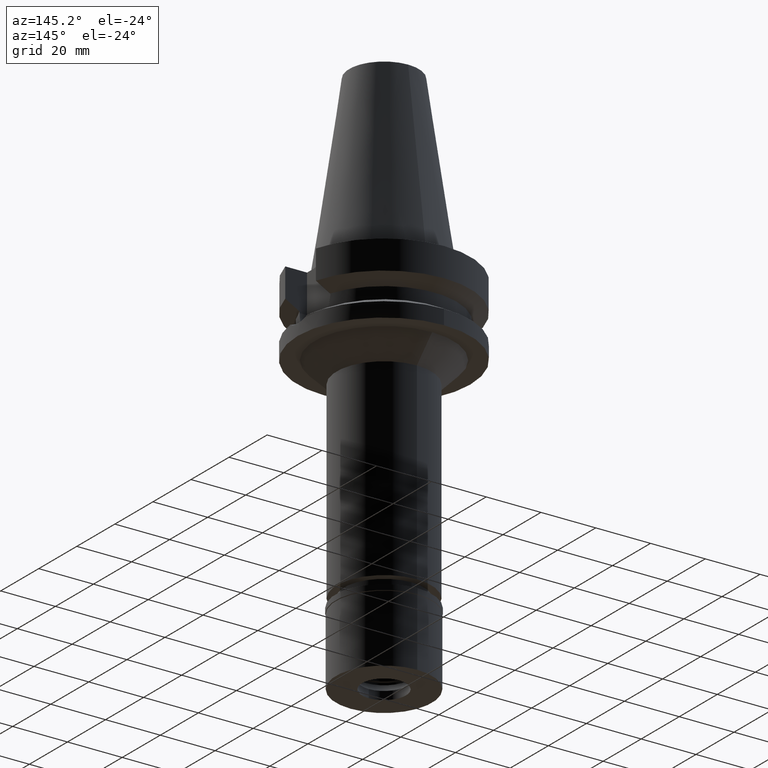
[diagram: clean part render]
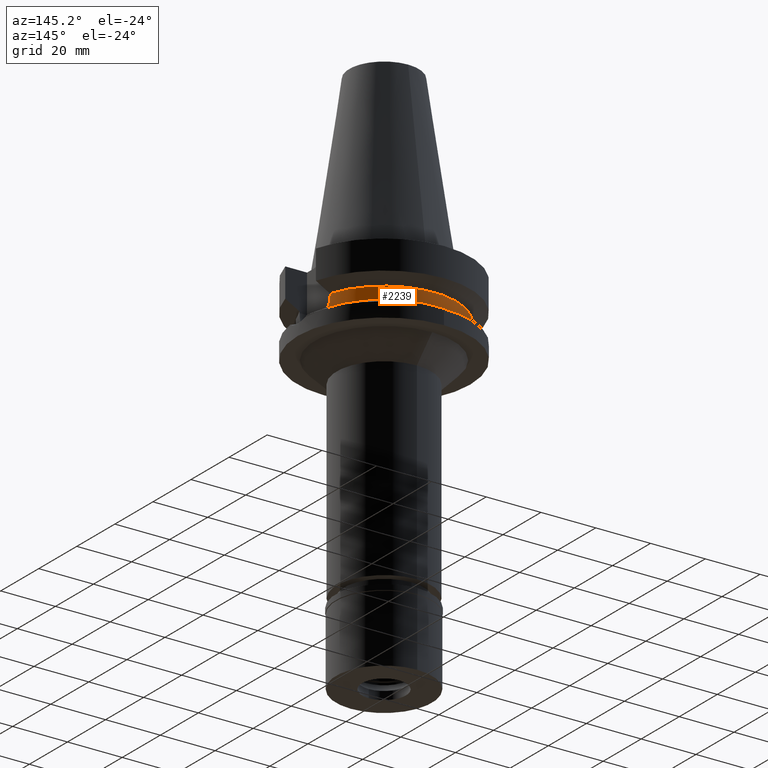
[diagram: same view with one face highlighted and labeled with its STEP entity id]
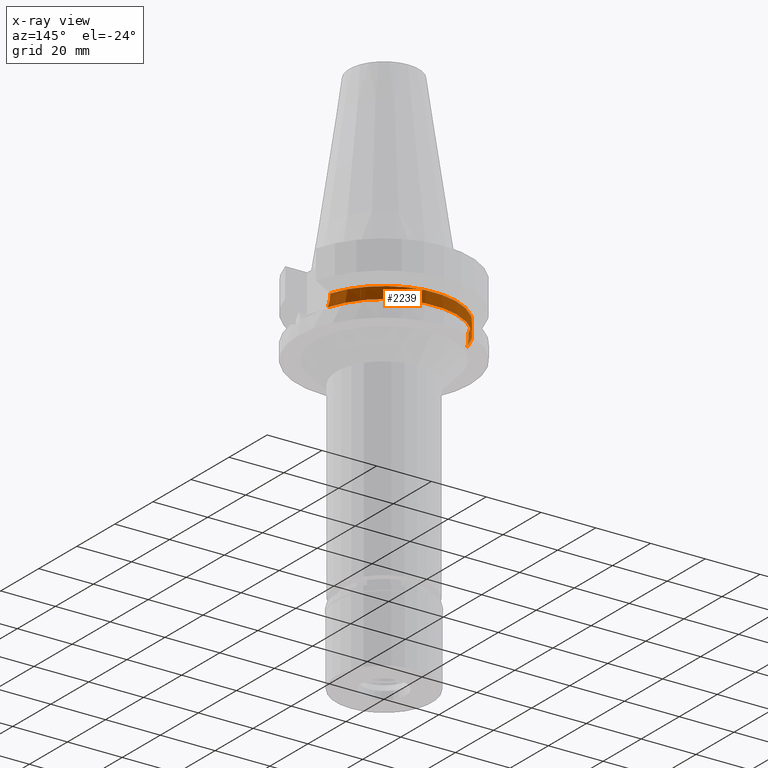
[diagram: x-ray of the same camera — body ghosted, the highlighted face saturated]
A machine part, auxiliary view. The second image highlights one B-rep face of the part: STEP entity #2239.
The next image is the same camera in x-ray: the body ghosted, the highlighted face saturated — about 1% of this face is hidden behind the body in this view.
In plain terms, the highlighted cylindrical surface (partial cylindrical patch) has radius 26.5 mm, axis along (0, 0, -1).
Its self-contained STEP definition (entity closure, byte-faithful):
#9 = VERTEX_POINT ( 'NONE', #2235 ) ;
#34 = VECTOR ( 'NONE', #677, 999.9999999999998863 ) ;
#37 = CIRCLE ( 'NONE', #502, 26.50000000000000711 ) ;
#97 = CARTESIAN_POINT ( 'NONE',  ( -25.25396277509630139, 8.030907860994652481, -15.59359823563421443 ) ) ;
#139 = CIRCLE ( 'NONE', #1357, 26.50000000000000000 ) ;
#176 = ORIENTED_EDGE ( 'NONE', *, *, #1034, .T. ) ;
#189 = LINE ( 'NONE', #1820, #1955 ) ;
#201 = VERTEX_POINT ( 'NONE', #1574 ) ;
#211 = CARTESIAN_POINT ( 'NONE',  ( 25.33291921434059546, 7.778007550393598812, -17.02550036343645701 ) ) ;
#252 = CARTESIAN_POINT ( 'NONE',  ( 25.35411236305994365, 7.708864339759551321, -17.26996869603094709 ) ) ;
#264 = CARTESIAN_POINT ( 'NONE',  ( 25.32549585278751891, 7.802104298502123392, -16.93243209947055661 ) ) ;
#268 = FACE_OUTER_BOUND ( 'NONE', #2583, .T. ) ;
#308 = CARTESIAN_POINT ( 'NONE',  ( -25.24772266958000344, 8.050000000000000711, -14.94999999999999929 ) ) ;
#325 = CARTESIAN_POINT ( 'NONE',  ( -25.27268309164519877, 7.971812745161276581, -16.08115051883406110 ) ) ;
#339 = CARTESIAN_POINT ( 'NONE',  ( -25.32118071774147339, 7.816100027254226035, -16.87651110713151681 ) ) ;
#358 = CARTESIAN_POINT ( 'NONE',  ( -25.31202500689250456, 7.845732311880508902, -16.75278555881673626 ) ) ;
#387 = DIRECTION ( 'NONE',  ( 2.936551147174931255E-06, -9.210096348165782148E-06, 0.9999999999532753758 ) ) ;
#452 = ORIENTED_EDGE ( 'NONE', *, *, #1259, .T. ) ;
#470 = CARTESIAN_POINT ( 'NONE',  ( -25.24772216383000156, 8.050001586230999706, -14.45224487841000105 ) ) ;
#477 = DIRECTION ( 'NONE',  ( 0.0000000000000000000, 0.0000000000000000000, -1.000000000000000000 ) ) ;
#489 = CARTESIAN_POINT ( 'NONE',  ( 25.44392127699355655, 7.408263445648324286, -18.11704143289363245 ) ) ;
#502 = AXIS2_PLACEMENT_3D ( 'NONE', #2085, #3022, #2543 ) ;
#543 = AXIS2_PLACEMENT_3D ( 'NONE', #2410, #477, #1408 ) ;
#577 = VERTEX_POINT ( 'NONE', #1483 ) ;
#677 = DIRECTION ( 'NONE',  ( -1.016071031859006128E-06, -3.186769501889020301E-06, -0.9999999999944061413 ) ) ;
#692 = CARTESIAN_POINT ( 'NONE',  ( 25.24772266958000344, 8.050000000000000711, -14.94999999999999929 ) ) ;
#763 = DIRECTION ( 'NONE',  ( 0.0000000000000000000, 1.000000000000000000, 0.0000000000000000000 ) ) ;
#821 = CARTESIAN_POINT ( 'NONE',  ( -25.31950825842964647, 7.821518470897436792, -16.85441217853277607 ) ) ;
#888 = EDGE_CURVE ( 'NONE', #2567, #2138, #1898, .T. ) ;
#919 = CARTESIAN_POINT ( 'NONE',  ( 0.0000000000000000000, 0.0000000000000000000, -18.74774300138999905 ) ) ;
#934 = DIRECTION ( 'NONE',  ( 0.0000000000000000000, 0.0000000000000000000, 1.000000000000000000 ) ) ;
#935 = CARTESIAN_POINT ( 'NONE',  ( 25.53175183775000079, 7.097862220092999941, -18.74774300138999905 ) ) ;
#997 = CARTESIAN_POINT ( 'NONE',  ( 25.48481625423943697, 7.266694416794561739, -18.43220093598961995 ) ) ;
#1034 = EDGE_CURVE ( 'NONE', #577, #201, #139, .T. ) ;
#1108 = CARTESIAN_POINT ( 'NONE',  ( 25.24772413111999825, 8.049995416061999975, -14.45229202588000028 ) ) ;
#1184 = CARTESIAN_POINT ( 'NONE',  ( 25.32843688206688171, 7.792560665374724138, -16.96962045695995869 ) ) ;
#1235 = CARTESIAN_POINT ( 'NONE',  ( 25.27269031700761204, 7.973298021042161565, -16.24529443266109752 ) ) ;
#1259 = EDGE_CURVE ( 'NONE', #2567, #2570, #37, .T. ) ;
#1261 = CARTESIAN_POINT ( 'NONE',  ( -25.30212858955025723, 7.877670097770138824, -16.61040846294178763 ) ) ;
#1291 = CARTESIAN_POINT ( 'NONE',  ( -25.24772266958000699, 8.050000000000000711, -15.26991016305875881 ) ) ;
#1357 = AXIS2_PLACEMENT_3D ( 'NONE', #919, #934, #763 ) ;
#1408 = DIRECTION ( 'NONE',  ( 0.0000000000000000000, -1.000000000000000000, 0.0000000000000000000 ) ) ;
#1479 = EDGE_CURVE ( 'NONE', #2138, #201, #2476, .T. ) ;
#1483 = CARTESIAN_POINT ( 'NONE',  ( 25.53175183775000079, 7.097862220092999941, -18.74774300138999905 ) ) ;
#1541 = CARTESIAN_POINT ( 'NONE',  ( -25.29452346095227000, 7.902092865019954004, -16.48827265655049956 ) ) ;
#1574 = CARTESIAN_POINT ( 'NONE',  ( -25.53175183775000079, 7.097862220092999941, -18.74774300138999905 ) ) ;
#1614 = EDGE_CURVE ( 'NONE', #9, #2570, #189, .T. ) ;
#1671 = CARTESIAN_POINT ( 'NONE',  ( 25.39163972052175922, 7.584838823498315286, -17.65189279968714686 ) ) ;
#1773 = ORIENTED_EDGE ( 'NONE', *, *, #1479, .F. ) ;
#1820 = CARTESIAN_POINT ( 'NONE',  ( 25.24772266958000344, 8.050000000000000711, -14.94999999999999929 ) ) ;
#1898 = LINE ( 'NONE', #470, #34 ) ;
#1955 = VECTOR ( 'NONE', #387, 1000.000000000000114 ) ;
#2085 = CARTESIAN_POINT ( 'NONE',  ( 0.0000000000000000000, 0.0000000000000000000, -14.45225699861000024 ) ) ;
#2136 = CARTESIAN_POINT ( 'NONE',  ( 25.24772266958001055, 8.050000000000000711, -15.58995880481703544 ) ) ;
#2138 = VERTEX_POINT ( 'NONE', #3062 ) ;
#2227 = CARTESIAN_POINT ( 'NONE',  ( -25.31648570732017944, 7.831303109279952324, -16.81376729956180682 ) ) ;
#2235 = CARTESIAN_POINT ( 'NONE',  ( 25.24772266958000344, 8.050000000000000711, -14.94999999999999929 ) ) ;
#2239 = ADVANCED_FACE ( 'NONE', ( #268 ), #2913, .T. ) ;
#2242 = CARTESIAN_POINT ( 'NONE',  ( -25.36814691286844337, 7.663833599050857259, -17.48802854147058738 ) ) ;
#2311 = CARTESIAN_POINT ( 'NONE',  ( -25.24772216383000156, 8.050001586230999706, -14.45224487841000105 ) ) ;
#2410 = CARTESIAN_POINT ( 'NONE',  ( 0.0000000000000000000, 0.0000000000000000000, 0.0000000000000000000 ) ) ;
#2476 = B_SPLINE_CURVE_WITH_KNOTS ( 'NONE', 3,
 ( #308, #1291, #97, #325, #2961, #1541, #1261, #358, #2227, #821, #339, #2242, #2931, #2974 ),
 .UNSPECIFIED., .F., .F.,
 ( 4, 2, 2, 1, 1, 2, 2, 4 ),
 ( 0.0000000000000000000, 0.2499999999999975575, 0.3749999999999970024, 0.4374999999999967804, 0.4687499999999966138, 0.4843749999999966693, 0.4999999999999966693, 1.000000000000000000 ),
 .UNSPECIFIED. ) ;
#2478 = B_SPLINE_CURVE_WITH_KNOTS ( 'NONE', 3,
 ( #935, #997, #489, #1671, #2592, #252, #2663, #211, #1184, #264, #3109, #1235, #2136, #692 ),
 .UNSPECIFIED., .F., .F.,
 ( 4, 2, 2, 1, 1, 2, 2, 4 ),
 ( 0.0000000000000000000, 0.2499999999999985567, 0.3749999999999977240, 0.4374999999999959477, 0.4687499999999952260, 0.4843749999999951150, 0.4999999999999949485, 1.000000000000000000 ),
 .UNSPECIFIED. ) ;
#2543 = DIRECTION ( 'NONE',  ( -0.9527442516822307583, 0.3037735849057093818, 0.0000000000000000000 ) ) ;
#2567 = VERTEX_POINT ( 'NONE', #2311 ) ;
#2570 = VERTEX_POINT ( 'NONE', #1108 ) ;
#2583 = EDGE_LOOP ( 'NONE', ( #452, #2803, #3000, #176, #1773, #2699 ) ) ;
#2592 = CARTESIAN_POINT ( 'NONE',  ( 25.37572268659732799, 7.637742846880424707, -17.49808964568499192 ) ) ;
#2663 = CARTESIAN_POINT ( 'NONE',  ( 25.34387350812855999, 7.742366891135753271, -17.15655251595566710 ) ) ;
#2699 = ORIENTED_EDGE ( 'NONE', *, *, #888, .F. ) ;
#2803 = ORIENTED_EDGE ( 'NONE', *, *, #1614, .F. ) ;
#2866 = EDGE_CURVE ( 'NONE', #577, #9, #2478, .T. ) ;
#2913 = CYLINDRICAL_SURFACE ( 'NONE', #543, 26.50000000000000000 ) ;
#2931 = CARTESIAN_POINT ( 'NONE',  ( -25.43786288019323649, 7.435590607929899676, -18.11653926700928707 ) ) ;
#2961 = CARTESIAN_POINT ( 'NONE',  ( -25.28048322354058186, 7.947042364861408359, -16.24399973116642570 ) ) ;
#2974 = CARTESIAN_POINT ( 'NONE',  ( -25.53175183775000079, 7.097862220092999941, -18.74774300138999905 ) ) ;
#3000 = ORIENTED_EDGE ( 'NONE', *, *, #2866, .F. ) ;
#3022 = DIRECTION ( 'NONE',  ( 0.0000000000000000000, 0.0000000000000000000, -1.000000000000000000 ) ) ;
#3062 = CARTESIAN_POINT ( 'NONE',  ( -25.24772266958000344, 8.050000000000000711, -14.94999999999999929 ) ) ;
#3109 = CARTESIAN_POINT ( 'NONE',  ( 25.32418608982704100, 7.806352244001212526, -16.91565584311024395 ) ) ;